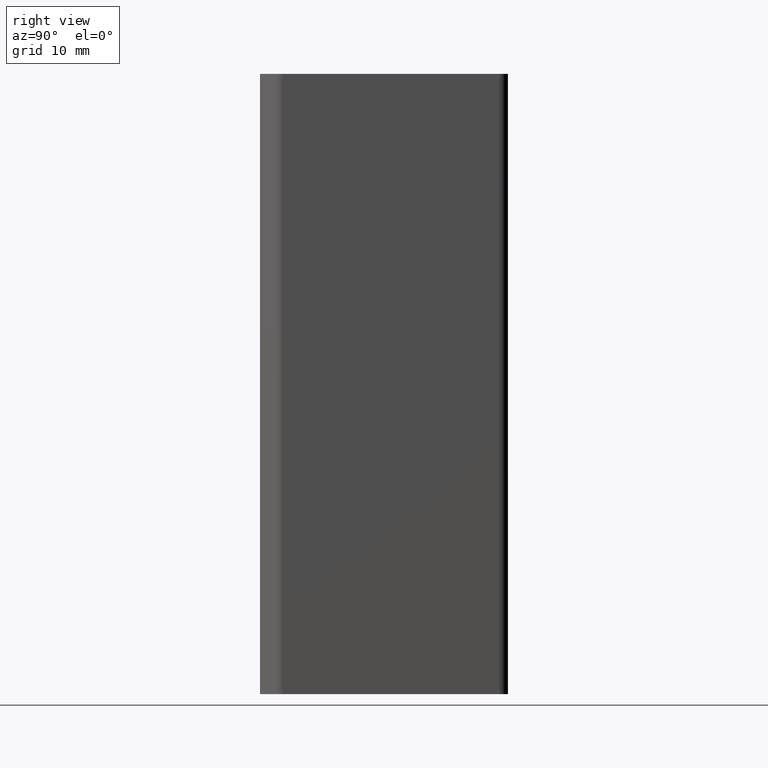
[diagram: clean part render]
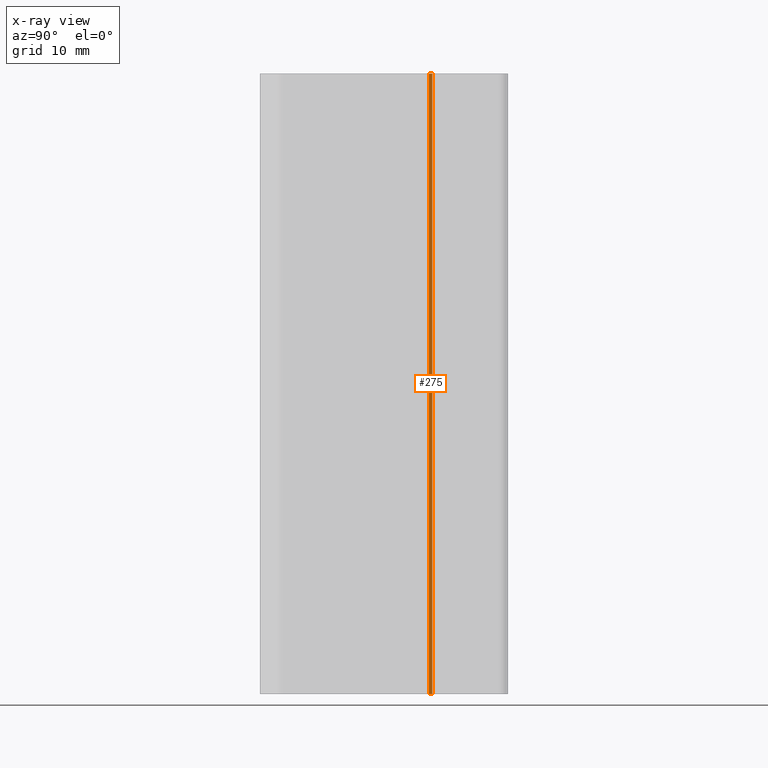
[diagram: x-ray — body ghosted, one internal face saturated and labeled with its STEP entity id]
A machine part, right view, then the same camera in x-ray: the body is ghosted and one INTERNAL B-rep face — a face not visible from any outside direction — is saturated and labeled: STEP entity #275.
In plain terms, the highlighted planar face has unit normal (1, -0, 0).
Its self-contained STEP definition (entity closure, byte-faithful):
#275 = ADVANCED_FACE ( 'NONE', ( #7412 ), #1124, .T. ) ;
#472 = ORIENTED_EDGE ( 'NONE', *, *, #5803, .F. ) ;
#721 = VERTEX_POINT ( 'NONE', #5982 ) ;
#723 = CARTESIAN_POINT ( 'NONE',  ( 504.7959761405936661, 717.6282637921843843, 100.0000000000000000 ) ) ;
#752 = EDGE_CURVE ( 'NONE', #2838, #5734, #8999, .T. ) ;
#980 = VECTOR ( 'NONE', #2335, 1000.000000000000114 ) ;
#1124 = PLANE ( 'NONE',  #5654 ) ;
#1879 = LINE ( 'NONE', #7521, #5789 ) ;
#2335 = DIRECTION ( 'NONE',  ( -8.679680656739719181E-07, -0.9999999999996233013, 0.000000000000000000 ) ) ;
#2585 = VECTOR ( 'NONE', #2852, 1000.000000000000114 ) ;
#2643 = DIRECTION ( 'NONE',  ( 0.9999999999996233013, -8.679680656739719181E-07, 0.000000000000000000 ) ) ;
#2838 = VERTEX_POINT ( 'NONE', #5978 ) ;
#2852 = DIRECTION ( 'NONE',  ( -8.679680656739719181E-07, -0.9999999999996233013, 0.000000000000000000 ) ) ;
#3014 = CARTESIAN_POINT ( 'NONE',  ( 504.7959761405936661, 717.6282637921843843, 0.000000000000000000 ) ) ;
#3253 = DIRECTION ( 'NONE',  ( -0.000000000000000000, -0.000000000000000000, -1.000000000000000000 ) ) ;
#3352 = EDGE_CURVE ( 'NONE', #2838, #7898, #4878, .T. ) ;
#3936 = CARTESIAN_POINT ( 'NONE',  ( 504.7959761405936661, 717.6282637921843843, 100.0000000000000000 ) ) ;
#4126 = ORIENTED_EDGE ( 'NONE', *, *, #4296, .T. ) ;
#4296 = EDGE_CURVE ( 'NONE', #5734, #721, #1879, .T. ) ;
#4473 = CARTESIAN_POINT ( 'NONE',  ( 504.7959761405936661, 717.6282637921843843, 0.000000000000000000 ) ) ;
#4878 = LINE ( 'NONE', #723, #5779 ) ;
#5233 = ORIENTED_EDGE ( 'NONE', *, *, #752, .T. ) ;
#5605 = CARTESIAN_POINT ( 'NONE',  ( 504.7959761405936661, 717.6282637921843843, 100.0000000000000000 ) ) ;
#5654 = AXIS2_PLACEMENT_3D ( 'NONE', #3936, #2643, #6723 ) ;
#5734 = VERTEX_POINT ( 'NONE', #7286 ) ;
#5779 = VECTOR ( 'NONE', #6360, 1000.000000000000000 ) ;
#5789 = VECTOR ( 'NONE', #3253, 1000.000000000000000 ) ;
#5803 = EDGE_CURVE ( 'NONE', #7898, #721, #5862, .T. ) ;
#5862 = LINE ( 'NONE', #3014, #980 ) ;
#5978 = CARTESIAN_POINT ( 'NONE',  ( 504.7959761405936661, 717.6282637921843843, 100.0000000000000000 ) ) ;
#5982 = CARTESIAN_POINT ( 'NONE',  ( 504.7959756732336700, 717.0898107568245905, 0.000000000000000000 ) ) ;
#6360 = DIRECTION ( 'NONE',  ( -0.000000000000000000, -0.000000000000000000, -1.000000000000000000 ) ) ;
#6723 = DIRECTION ( 'NONE',  ( 8.679680656739719181E-07, 0.9999999999996233013, 0.000000000000000000 ) ) ;
#6945 = EDGE_LOOP ( 'NONE', ( #472, #7480, #5233, #4126 ) ) ;
#7286 = CARTESIAN_POINT ( 'NONE',  ( 504.7959756732336700, 717.0898107568245905, 100.0000000000000000 ) ) ;
#7412 = FACE_OUTER_BOUND ( 'NONE', #6945, .T. ) ;
#7480 = ORIENTED_EDGE ( 'NONE', *, *, #3352, .F. ) ;
#7521 = CARTESIAN_POINT ( 'NONE',  ( 504.7959756732336700, 717.0898107568245905, 100.0000000000000000 ) ) ;
#7898 = VERTEX_POINT ( 'NONE', #4473 ) ;
#8999 = LINE ( 'NONE', #5605, #2585 ) ;